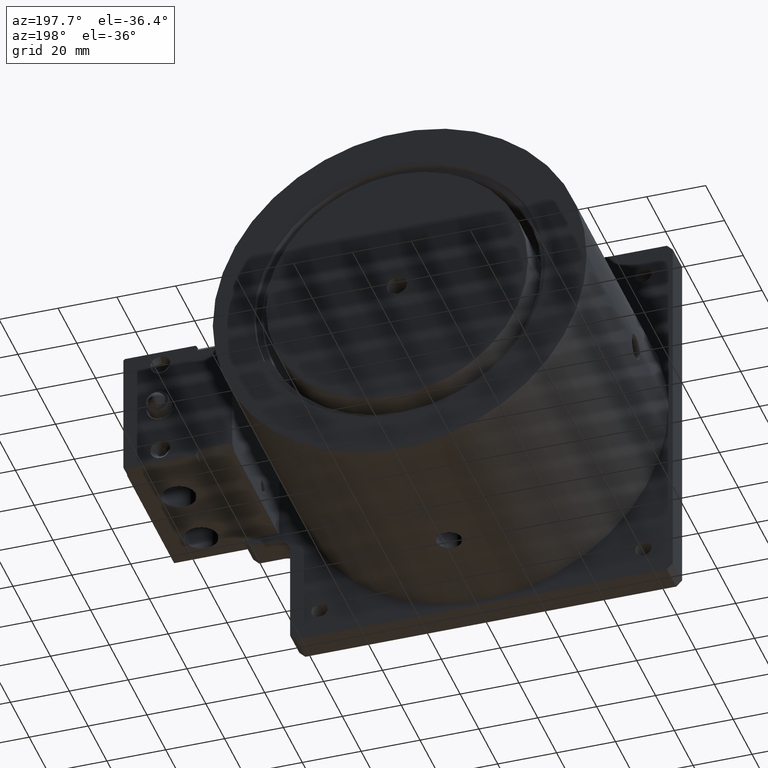
[diagram: clean part render]
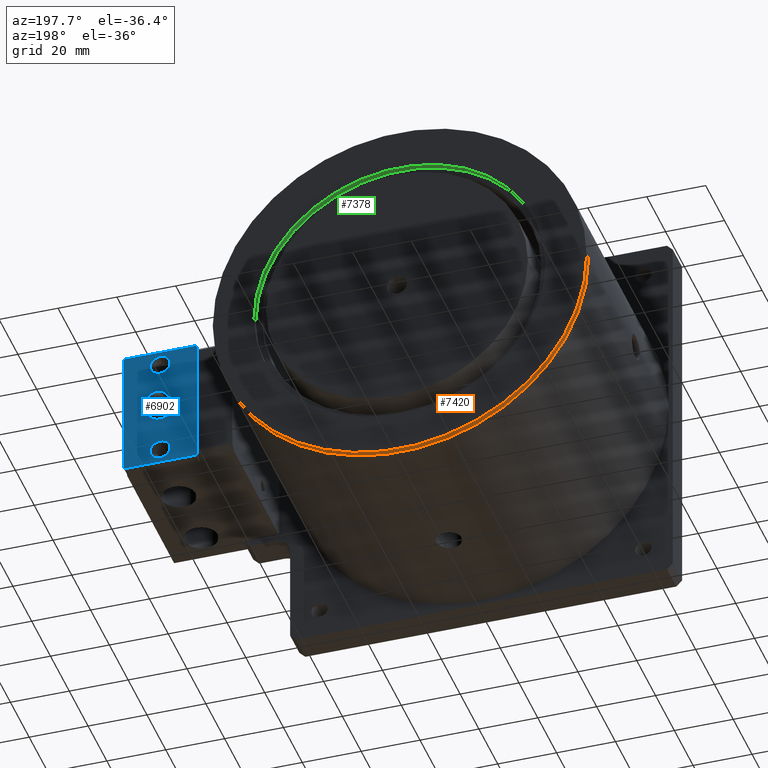
[diagram: same view with three faces highlighted in distinct colors, each labeled with its STEP entity id]
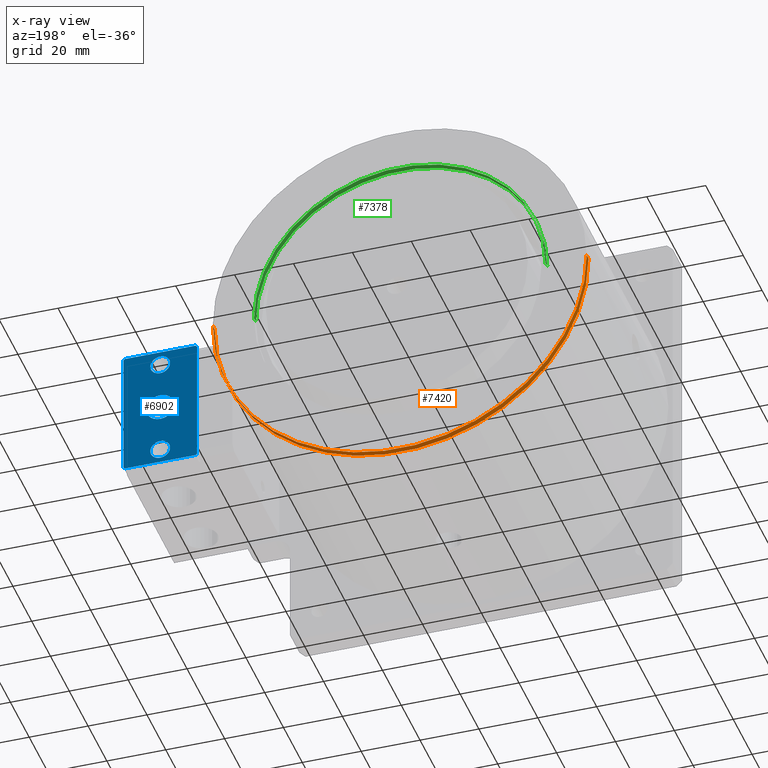
[diagram: x-ray of the same camera — body ghosted, the three highlighted faces saturated]
A machine part, auxiliary view with three faces highlighted in distinct colors.
The next image is the same camera in x-ray (body ghosted, the three faces saturated) — at least one of them is partly hidden behind the body in this view.
Their STEP definitions:

[orange] entity #7420 — the highlighted cylindrical surface (partial cylindrical patch) has radius 63.5 mm, axis along (0, 1, 0).
#7249=CARTESIAN_POINT('',(0.E0,0.E0,0.E0));
#7250=DIRECTION('',(0.E0,0.E0,1.E0));
#7251=DIRECTION('',(-1.E0,0.E0,0.E0));
#7252=AXIS2_PLACEMENT_3D('',#7249,#7250,#7251);
#7295=CARTESIAN_POINT('',(0.E0,0.E0,2.E0));
#7296=DIRECTION('',(0.E0,0.E0,1.E0));
#7297=DIRECTION('',(-1.E0,0.E0,0.E0));
#7298=AXIS2_PLACEMENT_3D('',#7295,#7296,#7297);
#7303=DIRECTION('',(0.E0,0.E0,1.E0));
#7304=VECTOR('',#7303,2.E0);
#7305=CARTESIAN_POINT('',(6.35E1,0.E0,0.E0));
#7306=LINE('',#7305,#7304);
#7310=DIRECTION('',(0.E0,0.E0,1.E0));
#7311=VECTOR('',#7310,2.E0);
#7312=CARTESIAN_POINT('',(-6.35E1,0.E0,0.E0));
#7313=LINE('',#7312,#7311);
#7321=CARTESIAN_POINT('',(6.35E1,0.E0,0.E0));
#7322=CARTESIAN_POINT('',(-6.35E1,1.555301434917E-14,0.E0));
#7323=VERTEX_POINT('',#7321);
#7324=VERTEX_POINT('',#7322);
#7329=CARTESIAN_POINT('',(6.35E1,0.E0,2.E0));
#7330=CARTESIAN_POINT('',(-6.35E1,1.555301434917E-14,2.E0));
#7331=VERTEX_POINT('',#7329);
#7332=VERTEX_POINT('',#7330);
#7409=CARTESIAN_POINT('',(0.E0,0.E0,0.E0));
#7410=DIRECTION('',(0.E0,0.E0,1.E0));
#7411=DIRECTION('',(1.E0,0.E0,0.E0));
#7412=AXIS2_PLACEMENT_3D('',#7409,#7410,#7411);
#7413=CYLINDRICAL_SURFACE('',#7412,6.35E1);
#7414=ORIENTED_EDGE('',*,*,#7340,.F.);
#7415=ORIENTED_EDGE('',*,*,#7404,.T.);
#7416=ORIENTED_EDGE('',*,*,#7386,.T.);
#7417=ORIENTED_EDGE('',*,*,#7401,.F.);
#7418=EDGE_LOOP('',(#7414,#7415,#7416,#7417));
#7419=FACE_OUTER_BOUND('',#7418,.F.);
#7253=CIRCLE('',#7252,6.35E1);
#7299=CIRCLE('',#7298,6.35E1);
#7340=EDGE_CURVE('',#7324,#7323,#7253,.T.);
#7386=EDGE_CURVE('',#7332,#7331,#7299,.T.);
#7401=EDGE_CURVE('',#7323,#7331,#7306,.T.);
#7404=EDGE_CURVE('',#7324,#7332,#7313,.T.);
#7420=ADVANCED_FACE('',(#7419),#7413,.T.);

[blue] entity #6902 — the highlighted planar face has unit normal (0, 1, 0).
#6377=DIRECTION('',(-7.071067811865E-1,-7.071067811865E-1,0.E0));
#6378=VECTOR('',#6377,7.071067811865E-1);
#6379=CARTESIAN_POINT('',(-2.15E1,1.25E1,2.E0));
#6380=LINE('',#6379,#6378);
#6384=DIRECTION('',(-1.E0,0.E0,0.E0));
#6385=VECTOR('',#6384,4.3E1);
#6386=CARTESIAN_POINT('',(2.15E1,1.25E1,2.E0));
#6387=LINE('',#6386,#6385);
#6391=DIRECTION('',(-7.071067811865E-1,7.071067811865E-1,0.E0));
#6392=VECTOR('',#6391,7.071067811865E-1);
#6393=CARTESIAN_POINT('',(2.2E1,1.2E1,2.E0));
#6394=LINE('',#6393,#6392);
#6398=DIRECTION('',(0.E0,1.E0,0.E0));
#6399=VECTOR('',#6398,2.4E1);
#6400=CARTESIAN_POINT('',(2.2E1,-1.2E1,2.E0));
#6401=LINE('',#6400,#6399);
#6405=DIRECTION('',(7.071067811865E-1,7.071067811865E-1,0.E0));
#6406=VECTOR('',#6405,7.071067811865E-1);
#6407=CARTESIAN_POINT('',(2.15E1,-1.25E1,2.E0));
#6408=LINE('',#6407,#6406);
#6412=DIRECTION('',(1.E0,0.E0,0.E0));
#6413=VECTOR('',#6412,4.3E1);
#6414=CARTESIAN_POINT('',(-2.15E1,-1.25E1,2.E0));
#6415=LINE('',#6414,#6413);
#6419=DIRECTION('',(7.071067811865E-1,-7.071067811865E-1,0.E0));
#6420=VECTOR('',#6419,7.071067811865E-1);
#6421=CARTESIAN_POINT('',(-2.2E1,-1.2E1,2.E0));
#6422=LINE('',#6421,#6420);
#6426=DIRECTION('',(0.E0,-1.E0,0.E0));
#6427=VECTOR('',#6426,2.4E1);
#6428=CARTESIAN_POINT('',(-2.2E1,1.2E1,2.E0));
#6429=LINE('',#6428,#6427);
#6433=CARTESIAN_POINT('',(-1.7E1,0.E0,2.E0));
#6434=DIRECTION('',(0.E0,0.E0,1.E0));
#6435=DIRECTION('',(-1.E0,0.E0,0.E0));
#6436=AXIS2_PLACEMENT_3D('',#6433,#6434,#6435);
#6441=CARTESIAN_POINT('',(-1.7E1,0.E0,2.E0));
#6442=DIRECTION('',(0.E0,0.E0,1.E0));
#6443=DIRECTION('',(1.E0,0.E0,0.E0));
#6444=AXIS2_PLACEMENT_3D('',#6441,#6442,#6443);
#6449=CARTESIAN_POINT('',(1.7E1,0.E0,2.E0));
#6450=DIRECTION('',(0.E0,0.E0,-1.E0));
#6451=DIRECTION('',(1.E0,0.E0,0.E0));
#6452=AXIS2_PLACEMENT_3D('',#6449,#6450,#6451);
#6457=CARTESIAN_POINT('',(1.7E1,0.E0,2.E0));
#6458=DIRECTION('',(0.E0,0.E0,-1.E0));
#6459=DIRECTION('',(-1.E0,0.E0,0.E0));
#6460=AXIS2_PLACEMENT_3D('',#6457,#6458,#6459);
#6465=CARTESIAN_POINT('',(0.E0,0.E0,2.E0));
#6466=DIRECTION('',(0.E0,0.E0,-1.E0));
#6467=DIRECTION('',(1.E0,0.E0,0.E0));
#6468=AXIS2_PLACEMENT_3D('',#6465,#6466,#6467);
#6473=CARTESIAN_POINT('',(0.E0,0.E0,2.E0));
#6474=DIRECTION('',(0.E0,0.E0,-1.E0));
#6475=DIRECTION('',(-1.E0,0.E0,0.E0));
#6476=AXIS2_PLACEMENT_3D('',#6473,#6474,#6475);
#6647=CARTESIAN_POINT('',(-2.15E1,1.25E1,2.E0));
#6648=VERTEX_POINT('',#6647);
#6649=CARTESIAN_POINT('',(-2.2E1,1.2E1,2.E0));
#6650=VERTEX_POINT('',#6649);
#6655=CARTESIAN_POINT('',(-2.2E1,-1.2E1,2.E0));
#6656=VERTEX_POINT('',#6655);
#6657=CARTESIAN_POINT('',(-2.15E1,-1.25E1,2.E0));
#6658=VERTEX_POINT('',#6657);
#6663=CARTESIAN_POINT('',(2.2E1,1.2E1,2.E0));
#6664=VERTEX_POINT('',#6663);
#6665=CARTESIAN_POINT('',(2.15E1,1.25E1,2.E0));
#6666=VERTEX_POINT('',#6665);
#6671=CARTESIAN_POINT('',(2.15E1,-1.25E1,2.E0));
#6672=VERTEX_POINT('',#6671);
#6673=CARTESIAN_POINT('',(2.2E1,-1.2E1,2.E0));
#6674=VERTEX_POINT('',#6673);
#6683=CARTESIAN_POINT('',(-2.036E1,0.E0,2.E0));
#6684=CARTESIAN_POINT('',(-1.364E1,0.E0,2.E0));
#6685=VERTEX_POINT('',#6683);
#6686=VERTEX_POINT('',#6684);
#6693=CARTESIAN_POINT('',(2.036E1,0.E0,2.E0));
#6694=VERTEX_POINT('',#6693);
#6697=CARTESIAN_POINT('',(1.364E1,0.E0,2.E0));
#6698=VERTEX_POINT('',#6697);
#6699=CARTESIAN_POINT('',(4.75E0,0.E0,2.E0));
#6700=CARTESIAN_POINT('',(-4.75E0,0.E0,2.E0));
#6701=VERTEX_POINT('',#6699);
#6702=VERTEX_POINT('',#6700);
#6869=CARTESIAN_POINT('',(0.E0,0.E0,2.E0));
#6870=DIRECTION('',(0.E0,0.E0,1.E0));
#6871=DIRECTION('',(1.E0,0.E0,0.E0));
#6872=AXIS2_PLACEMENT_3D('',#6869,#6870,#6871);
#6873=PLANE('',#6872);
#6874=ORIENTED_EDGE('',*,*,#6765,.F.);
#6875=ORIENTED_EDGE('',*,*,#6781,.F.);
#6876=ORIENTED_EDGE('',*,*,#6794,.F.);
#6877=ORIENTED_EDGE('',*,*,#6809,.F.);
#6878=ORIENTED_EDGE('',*,*,#6822,.F.);
#6879=ORIENTED_EDGE('',*,*,#6835,.F.);
#6880=ORIENTED_EDGE('',*,*,#6850,.F.);
#6881=ORIENTED_EDGE('',*,*,#6862,.F.);
#6882=EDGE_LOOP('',(#6874,#6875,#6876,#6877,#6878,#6879,#6880,#6881));
#6883=FACE_OUTER_BOUND('',#6882,.F.);
#6885=ORIENTED_EDGE('',*,*,#6884,.T.);
#6887=ORIENTED_EDGE('',*,*,#6886,.T.);
#6888=EDGE_LOOP('',(#6885,#6887));
#6889=FACE_BOUND('',#6888,.F.);
#6891=ORIENTED_EDGE('',*,*,#6890,.F.);
#6893=ORIENTED_EDGE('',*,*,#6892,.F.);
#6894=EDGE_LOOP('',(#6891,#6893));
#6895=FACE_BOUND('',#6894,.F.);
#6897=ORIENTED_EDGE('',*,*,#6896,.F.);
#6899=ORIENTED_EDGE('',*,*,#6898,.F.);
#6900=EDGE_LOOP('',(#6897,#6899));
#6901=FACE_BOUND('',#6900,.F.);
#6437=CIRCLE('',#6436,3.36E0);
#6445=CIRCLE('',#6444,3.36E0);
#6453=CIRCLE('',#6452,3.36E0);
#6461=CIRCLE('',#6460,3.36E0);
#6469=CIRCLE('',#6468,4.75E0);
#6477=CIRCLE('',#6476,4.75E0);
#6765=EDGE_CURVE('',#6648,#6650,#6380,.T.);
#6781=EDGE_CURVE('',#6666,#6648,#6387,.T.);
#6794=EDGE_CURVE('',#6664,#6666,#6394,.T.);
#6809=EDGE_CURVE('',#6674,#6664,#6401,.T.);
#6822=EDGE_CURVE('',#6672,#6674,#6408,.T.);
#6835=EDGE_CURVE('',#6658,#6672,#6415,.T.);
#6850=EDGE_CURVE('',#6656,#6658,#6422,.T.);
#6862=EDGE_CURVE('',#6650,#6656,#6429,.T.);
#6884=EDGE_CURVE('',#6685,#6686,#6437,.T.);
#6886=EDGE_CURVE('',#6686,#6685,#6445,.T.);
#6890=EDGE_CURVE('',#6694,#6698,#6453,.T.);
#6892=EDGE_CURVE('',#6698,#6694,#6461,.T.);
#6896=EDGE_CURVE('',#6701,#6702,#6469,.T.);
#6898=EDGE_CURVE('',#6702,#6701,#6477,.T.);
#6902=ADVANCED_FACE('',(#6883,#6889,#6895,#6901),#6873,.T.);

[green] entity #7378 — the highlighted cylindrical surface (partial cylindrical patch) has radius 49.5 mm, axis along (0, 1, 0).
#7233=CARTESIAN_POINT('',(0.E0,0.E0,0.E0));
#7234=DIRECTION('',(0.E0,0.E0,-1.E0));
#7235=DIRECTION('',(-1.E0,0.E0,0.E0));
#7236=AXIS2_PLACEMENT_3D('',#7233,#7234,#7235);
#7257=DIRECTION('',(0.E0,0.E0,1.E0));
#7258=VECTOR('',#7257,2.E0);
#7259=CARTESIAN_POINT('',(4.95E1,0.E0,0.E0));
#7260=LINE('',#7259,#7258);
#7264=DIRECTION('',(0.E0,0.E0,1.E0));
#7265=VECTOR('',#7264,2.E0);
#7266=CARTESIAN_POINT('',(-4.95E1,0.E0,0.E0));
#7267=LINE('',#7266,#7265);
#7279=CARTESIAN_POINT('',(0.E0,0.E0,2.E0));
#7280=DIRECTION('',(0.E0,0.E0,-1.E0));
#7281=DIRECTION('',(-1.E0,0.E0,0.E0));
#7282=AXIS2_PLACEMENT_3D('',#7279,#7280,#7281);
#7317=CARTESIAN_POINT('',(4.95E1,0.E0,0.E0));
#7318=CARTESIAN_POINT('',(-4.95E1,0.E0,0.E0));
#7319=VERTEX_POINT('',#7317);
#7320=VERTEX_POINT('',#7318);
#7325=CARTESIAN_POINT('',(4.95E1,0.E0,2.E0));
#7326=CARTESIAN_POINT('',(-4.95E1,0.E0,2.E0));
#7327=VERTEX_POINT('',#7325);
#7328=VERTEX_POINT('',#7326);
#7366=CARTESIAN_POINT('',(0.E0,0.E0,0.E0));
#7367=DIRECTION('',(0.E0,0.E0,1.E0));
#7368=DIRECTION('',(1.E0,0.E0,0.E0));
#7369=AXIS2_PLACEMENT_3D('',#7366,#7367,#7368);
#7370=CYLINDRICAL_SURFACE('',#7369,4.95E1);
#7371=ORIENTED_EDGE('',*,*,#7346,.F.);
#7372=ORIENTED_EDGE('',*,*,#7361,.T.);
#7374=ORIENTED_EDGE('',*,*,#7373,.T.);
#7375=ORIENTED_EDGE('',*,*,#7357,.F.);
#7376=EDGE_LOOP('',(#7371,#7372,#7374,#7375));
#7377=FACE_OUTER_BOUND('',#7376,.F.);
#7237=CIRCLE('',#7236,4.95E1);
#7283=CIRCLE('',#7282,4.95E1);
#7346=EDGE_CURVE('',#7320,#7319,#7237,.T.);
#7357=EDGE_CURVE('',#7319,#7327,#7260,.T.);
#7361=EDGE_CURVE('',#7320,#7328,#7267,.T.);
#7373=EDGE_CURVE('',#7328,#7327,#7283,.T.);
#7378=ADVANCED_FACE('',(#7377),#7370,.F.);